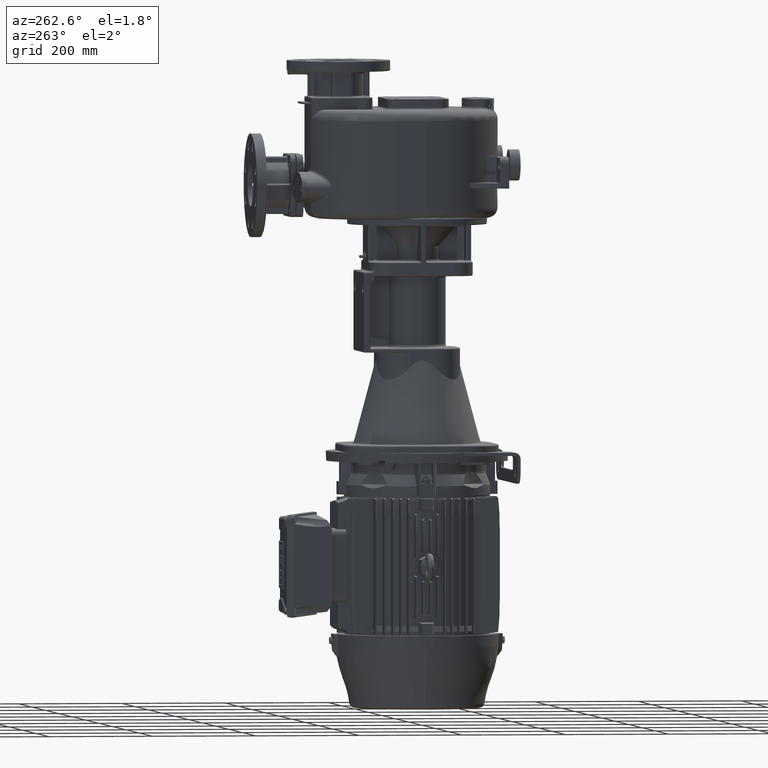
[diagram: clean part render]
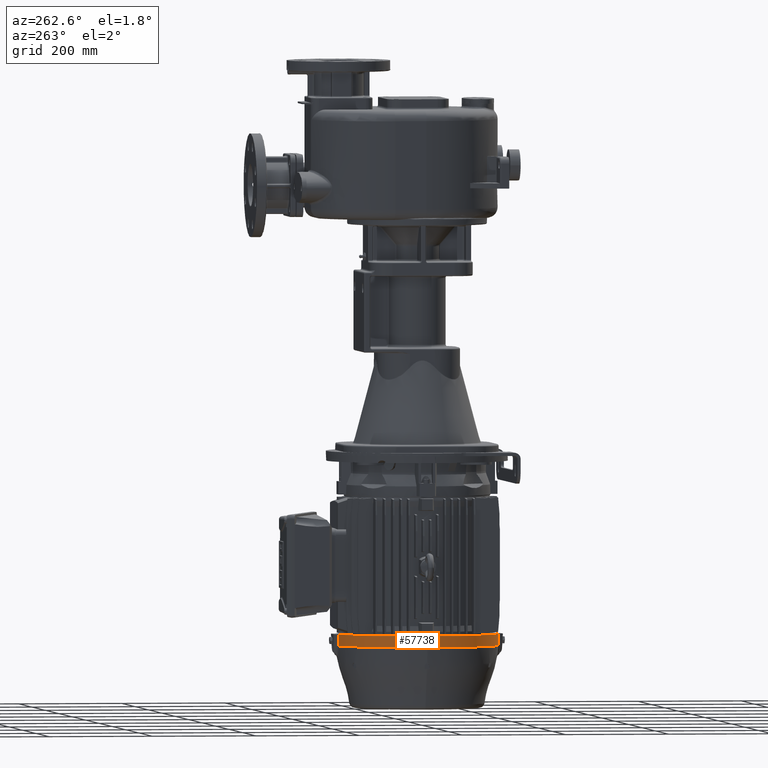
[diagram: same view with one face highlighted and labeled with its STEP entity id]
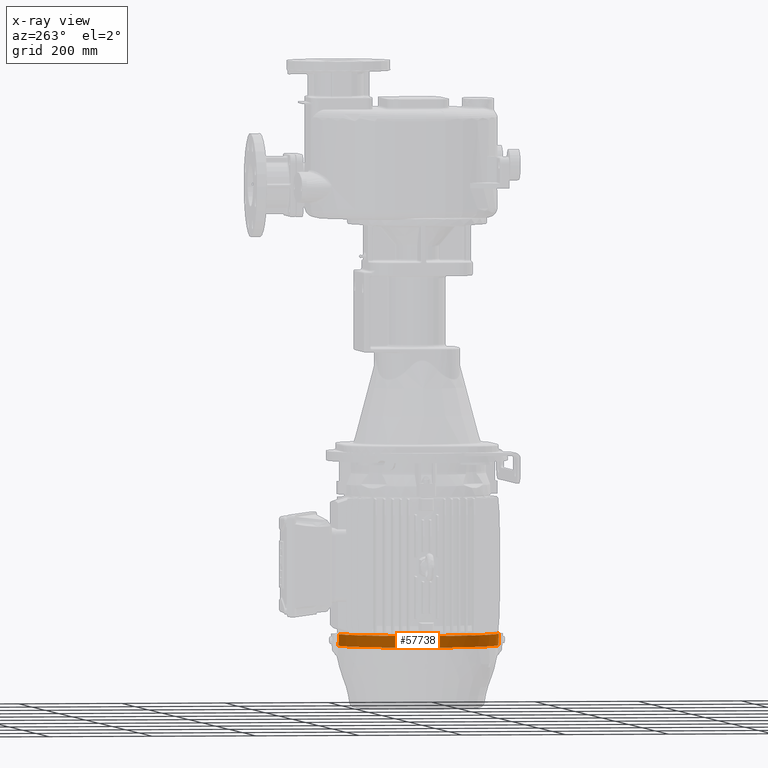
[diagram: x-ray of the same camera — body ghosted, the highlighted face saturated]
A machine part, auxiliary view. The second image highlights one B-rep face of the part: STEP entity #57738.
The next image is the same camera in x-ray: the body ghosted, the highlighted face saturated — about 0% of this face is hidden behind the body in this view.
In plain terms, the highlighted conical surface has half-angle 1.75 deg.
Its self-contained STEP definition (entity closure, byte-faithful):
#897=CARTESIAN_POINT('',(-2.552182760664E1,3.279399471537E0,-9.042500025034E2));
#926=CARTESIAN_POINT('',(8.634161712655E-1,1.58E2,-9.0425E2));
#927=DIRECTION('',(0.E0,0.E0,1.E0));
#928=DIRECTION('',(-9.961033580094E-1,-8.819353809900E-2,0.E0));
#929=AXIS2_PLACEMENT_3D('',#926,#927,#928);
#944=CARTESIAN_POINT('',(8.634161712655E-1,1.58E2,-9.0425E2));
#945=DIRECTION('',(0.E0,0.E0,1.E0));
#946=DIRECTION('',(-1.681078342649E-1,9.857686118247E-1,0.E0));
#947=AXIS2_PLACEMENT_3D('',#944,#945,#946);
#976=CARTESIAN_POINT('',(-2.552182821588E1,3.127206041322E2,-9.042500025034E2));
#1226=CARTESIAN_POINT('',(-2.495837948466E1,3.126292350262E2,
-9.102668567173E2));
#1228=CARTESIAN_POINT('',(-2.495837948467E1,3.370764973820E0,
-9.102668567172E2));
#1229=CARTESIAN_POINT('',(-2.502093538395E1,3.360575420898E0,
-9.095989061599E2));
#1230=CARTESIAN_POINT('',(-2.514609689620E1,3.340142174617E0,
-9.082626152397E2));
#1231=CARTESIAN_POINT('',(-2.533390851265E1,3.309713605539E0,
-9.062569976525E2));
#1232=CARTESIAN_POINT('',(-2.545917388681E1,3.289507572718E0,
-9.049191309228E2));
#1233=CARTESIAN_POINT('',(-2.552182760664E1,3.279399471537E0,
-9.042500025034E2));
#1235=CARTESIAN_POINT('',(-2.136977705618E1,3.317058907582E0,
-9.265578225722E2));
#1236=CARTESIAN_POINT('',(-2.229962292003E1,3.369314161893E0,
-9.239208372831E2));
#1237=CARTESIAN_POINT('',(-2.382941015787E1,3.440216790962E0,
-9.185691604524E2));
#1238=CARTESIAN_POINT('',(-2.469697889834E1,3.413676214618E0,
-9.130613886804E2));
#1239=CARTESIAN_POINT('',(-2.495837948467E1,3.370764973820E0,
-9.102668567172E2));
#1241=CARTESIAN_POINT('',(-2.495837948466E1,3.126292350262E2,
-9.102668567173E2));
#1242=CARTESIAN_POINT('',(-2.469697889833E1,3.125863237854E2,
-9.130613886805E2));
#1243=CARTESIAN_POINT('',(-2.382941015787E1,3.125597832090E2,
-9.185691604524E2));
#1244=CARTESIAN_POINT('',(-2.229962292003E1,3.126306858381E2,
-9.239208372831E2));
#1245=CARTESIAN_POINT('',(-2.136977705618E1,3.126829410924E2,
-9.265578225722E2));
#1247=CARTESIAN_POINT('',(-2.552182821588E1,3.127206041322E2,
-9.042500025034E2));
#1248=CARTESIAN_POINT('',(-2.545917449605E1,3.127104960310E2,
-9.049191309228E2));
#1249=CARTESIAN_POINT('',(-2.533390822834E1,3.126902847127E2,
-9.062569976525E2));
#1250=CARTESIAN_POINT('',(-2.514609697743E1,3.126598583059E2,
-9.082626152397E2));
#1251=CARTESIAN_POINT('',(-2.502093538395E1,3.126394245791E2,
-9.095989061598E2));
#1252=CARTESIAN_POINT('',(-2.495837948466E1,3.126292350262E2,
-9.102668567173E2));
#1254=CARTESIAN_POINT('',(-1.550041079223E2,1.695826025889E2,-9.2575E2));
#1255=CARTESIAN_POINT('',(-1.551676963007E2,1.703358375773E2,
-9.185834478003E2));
#1256=CARTESIAN_POINT('',(-1.553260314024E2,1.710890846329E2,
-9.114167807894E2));
#1257=CARTESIAN_POINT('',(-1.554791604710E2,1.718423436471E2,-9.0425E2));
#1259=CARTESIAN_POINT('',(-1.554791604710E2,1.441576563529E2,-9.0425E2));
#1260=CARTESIAN_POINT('',(-1.553260314024E2,1.449109153671E2,
-9.114167807894E2));
#1261=CARTESIAN_POINT('',(-1.551676963007E2,1.456641624227E2,
-9.185834478003E2));
#1262=CARTESIAN_POINT('',(-1.550041079223E2,1.464173974111E2,-9.2575E2));
#1588=CARTESIAN_POINT('',(8.634161712655E-1,1.58E2,-9.265578226274E2));
#1589=DIRECTION('',(0.E0,0.E0,-1.E0));
#1590=DIRECTION('',(-1.E0,0.E0,0.E0));
#1591=AXIS2_PLACEMENT_3D('',#1588,#1589,#1590);
#1721=CARTESIAN_POINT('',(8.634161712655E-1,1.58E2,-9.265578226274E2));
#1722=DIRECTION('',(0.E0,0.E0,-1.E0));
#1723=DIRECTION('',(-1.422718546429E-1,-9.898276210414E-1,0.E0));
#1724=AXIS2_PLACEMENT_3D('',#1721,#1722,#1723);
#1732=CARTESIAN_POINT('',(-2.136977705618E1,3.317058907582E0,
-9.265578225722E2));
#2475=CARTESIAN_POINT('',(-2.495837948467E1,3.370764973820E0,
-9.102668567172E2));
#11777=CARTESIAN_POINT('',(-2.136977705618E1,3.126829410924E2,
-9.265578225722E2));
#12195=CARTESIAN_POINT('',(8.634161712655E-1,1.58E2,-9.2575E2));
#12196=DIRECTION('',(0.E0,0.E0,1.E0));
#12197=DIRECTION('',(-9.972503530911E-1,7.410622956035E-2,0.E0));
#12198=AXIS2_PLACEMENT_3D('',#12195,#12196,#12197);
#51563=VERTEX_POINT('',#1732);
#52456=CARTESIAN_POINT('',(-1.550041079223E2,1.464173974111E2,-9.2575E2));
#52458=VERTEX_POINT('',#52456);
#52459=CARTESIAN_POINT('',(-1.554791604710E2,1.718423436471E2,-9.0425E2));
#52460=VERTEX_POINT('',#52459);
#52461=CARTESIAN_POINT('',(-1.550041079223E2,1.695826025889E2,-9.2575E2));
#52462=VERTEX_POINT('',#52461);
#52463=CARTESIAN_POINT('',(-1.554791604710E2,1.441576563529E2,-9.0425E2));
#52464=VERTEX_POINT('',#52463);
#52467=VERTEX_POINT('',#2475);
#52472=VERTEX_POINT('',#976);
#52473=VERTEX_POINT('',#1226);
#52476=VERTEX_POINT('',#897);
#52477=VERTEX_POINT('',#11777);
#52604=CARTESIAN_POINT('',(-1.554091890593E2,1.58E2,-9.265578226274E2));
#52605=VERTEX_POINT('',#52604);
#57712=CARTESIAN_POINT('',(8.634161712655E-1,1.58E2,-9.154039113137E2));
#57713=DIRECTION('',(0.E0,0.E0,1.E0));
#57714=DIRECTION('',(1.E0,0.E0,0.E0));
#57715=AXIS2_PLACEMENT_3D('',#57712,#57713,#57714);
#57716=CONICAL_SURFACE('',#57715,1.566133880428E2,1.75E0);
#57717=ORIENTED_EDGE('',*,*,#57493,.T.);
#57719=ORIENTED_EDGE('',*,*,#57718,.F.);
#57721=ORIENTED_EDGE('',*,*,#57720,.F.);
#57723=ORIENTED_EDGE('',*,*,#57722,.T.);
#57725=ORIENTED_EDGE('',*,*,#57724,.T.);
#57727=ORIENTED_EDGE('',*,*,#57726,.F.);
#57728=ORIENTED_EDGE('',*,*,#57703,.F.);
#57729=ORIENTED_EDGE('',*,*,#57501,.T.);
#57731=ORIENTED_EDGE('',*,*,#57730,.F.);
#57733=ORIENTED_EDGE('',*,*,#57732,.T.);
#57735=ORIENTED_EDGE('',*,*,#57734,.F.);
#57736=EDGE_LOOP('',(#57717,#57719,#57721,#57723,#57725,#57727,#57728,#57729,
#57731,#57733,#57735));
#57737=FACE_OUTER_BOUND('',#57736,.F.);
#57738=ADVANCED_FACE('',(#57737),#57716,.T.);
#930=CIRCLE('',#929,1.569541708551E2);
#948=CIRCLE('',#947,1.569541708551E2);
#1234=B_SPLINE_CURVE_WITH_KNOTS('',3,(#1228,#1229,#1230,#1231,#1232,#1233),
.UNSPECIFIED.,.F.,.F.,(4,1,1,4),(0.E0,3.333333333333E-1,6.666666666667E-1,1.E0),
.UNSPECIFIED.);
#1240=B_SPLINE_CURVE_WITH_KNOTS('',3,(#1235,#1236,#1237,#1238,#1239),
.UNSPECIFIED.,.F.,.F.,(4,1,4),(0.E0,5.E-1,1.E0),.UNSPECIFIED.);
#1246=B_SPLINE_CURVE_WITH_KNOTS('',3,(#1241,#1242,#1243,#1244,#1245),
.UNSPECIFIED.,.F.,.F.,(4,1,4),(0.E0,5.E-1,1.E0),.UNSPECIFIED.);
#1253=B_SPLINE_CURVE_WITH_KNOTS('',3,(#1247,#1248,#1249,#1250,#1251,#1252),
.UNSPECIFIED.,.F.,.F.,(4,1,1,4),(0.E0,3.333333333333E-1,6.666666666667E-1,1.E0),
.UNSPECIFIED.);
#1258=B_SPLINE_CURVE_WITH_KNOTS('',3,(#1254,#1255,#1256,#1257),.UNSPECIFIED.,
.F.,.F.,(4,4),(0.E0,1.E0),.UNSPECIFIED.);
#1263=B_SPLINE_CURVE_WITH_KNOTS('',3,(#1259,#1260,#1261,#1262),.UNSPECIFIED.,
.F.,.F.,(4,4),(0.E0,1.E0),.UNSPECIFIED.);
#1592=CIRCLE('',#1591,1.562726052306E2);
#1725=CIRCLE('',#1724,1.562726052306E2);
#12199=CIRCLE('',#12198,1.562972864441E2);
#57493=EDGE_CURVE('',#52464,#52476,#930,.T.);
#57501=EDGE_CURVE('',#52472,#52460,#948,.T.);
#57703=EDGE_CURVE('',#52472,#52473,#1253,.T.);
#57718=EDGE_CURVE('',#52467,#52476,#1234,.T.);
#57720=EDGE_CURVE('',#51563,#52467,#1240,.T.);
#57722=EDGE_CURVE('',#51563,#52605,#1725,.T.);
#57724=EDGE_CURVE('',#52605,#52477,#1592,.T.);
#57726=EDGE_CURVE('',#52473,#52477,#1246,.T.);
#57730=EDGE_CURVE('',#52462,#52460,#1258,.T.);
#57732=EDGE_CURVE('',#52462,#52458,#12199,.T.);
#57734=EDGE_CURVE('',#52464,#52458,#1263,.T.);